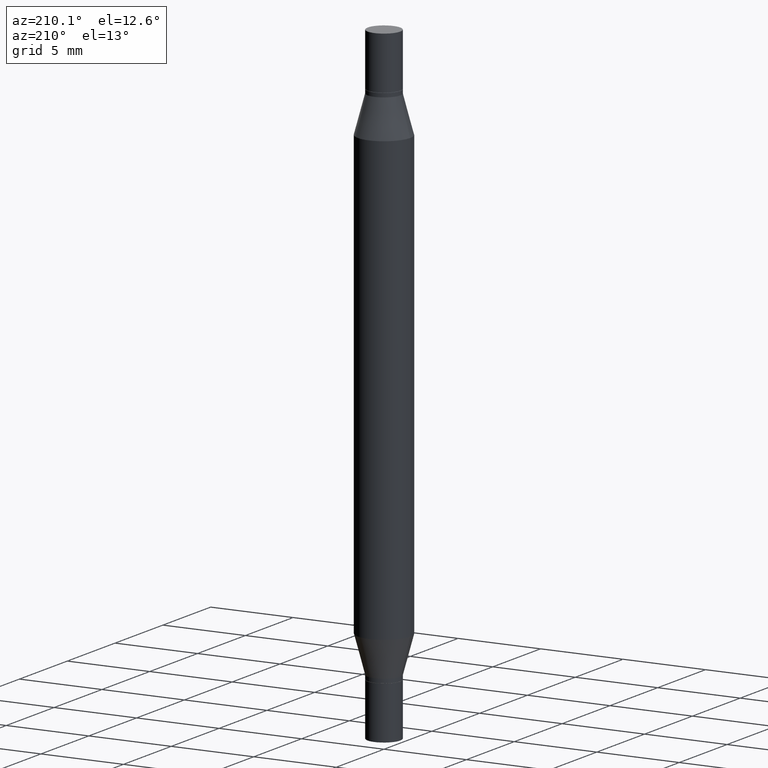
[diagram: clean part render]
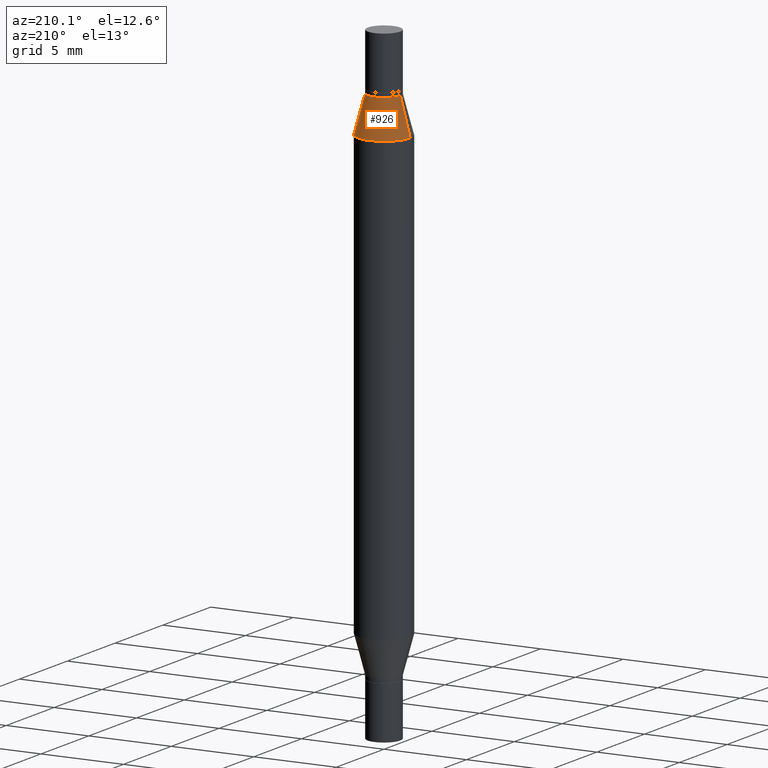
[diagram: same view with one face highlighted and labeled with its STEP entity id]
A machine part, auxiliary view. The second image highlights one B-rep face of the part: STEP entity #926.
In plain terms, the highlighted conical surface has half-angle 15 deg.
Its self-contained STEP definition (entity closure, byte-faithful):
#10 = FACE_OUTER_BOUND ( 'NONE', #309, .T. ) ;
#56 = VECTOR ( 'NONE', #739, 39.37007874015748143 ) ;
#67 = ORIENTED_EDGE ( 'NONE', *, *, #930, .F. ) ;
#80 = LINE ( 'NONE', #910, #876 ) ;
#124 = CIRCLE ( 'NONE', #293, 0.03904999999999992505 ) ;
#148 = EDGE_CURVE ( 'NONE', #767, #284, #496, .T. ) ;
#183 = CARTESIAN_POINT ( 'NONE',  ( 3.124045826058680346E-29, -7.767417506063242664E-16, -0.2225165914374896692 ) ) ;
#232 = DIRECTION ( 'NONE',  ( 0.2588190451025215721, -5.180148453816008779E-15, -0.9659258262890679791 ) ) ;
#236 = CARTESIAN_POINT ( 'NONE',  ( -0.03904999999999992505, -1.866623497172225345E-16, -0.1349999999999995093 ) ) ;
#270 = CARTESIAN_POINT ( 'NONE',  ( -0.03904999999999992505, -2.032484239182884731E-16, -0.1349999999999995093 ) ) ;
#284 = VERTEX_POINT ( 'NONE', #497 ) ;
#293 = AXIS2_PLACEMENT_3D ( 'NONE', #756, #607, #912 ) ;
#308 = DIRECTION ( 'NONE',  ( -2.445468806185136597E-29, -3.491805094961124077E-15, -1.000000000000000000 ) ) ;
#309 = EDGE_LOOP ( 'NONE', ( #425, #67, #380, #980 ) ) ;
#380 = ORIENTED_EDGE ( 'NONE', *, *, #674, .T. ) ;
#409 = CARTESIAN_POINT ( 'NONE',  ( 0.06250000000000000000, -1.213176917961717218E-15, -0.2225165914374896692 ) ) ;
#425 = ORIENTED_EDGE ( 'NONE', *, *, #469, .F. ) ;
#464 = CARTESIAN_POINT ( 'NONE',  ( 0.03904999999999992505, -7.438355632949145092E-16, -0.1349999999999995093 ) ) ;
#469 = EDGE_CURVE ( 'NONE', #645, #284, #965, .T. ) ;
#493 = DIRECTION ( 'NONE',  ( 1.000000000000000000, -6.982962677686266711E-15, 0.000000000000000000 ) ) ;
#496 = CIRCLE ( 'NONE', #796, 0.06250000000000000000 ) ;
#497 = CARTESIAN_POINT ( 'NONE',  ( -0.06250000000000000000, -3.479606257456047271E-16, -0.2225165914374896692 ) ) ;
#546 = DIRECTION ( 'NONE',  ( 2.445468806185136597E-29, 3.491805094961124077E-15, 1.000000000000000000 ) ) ;
#607 = DIRECTION ( 'NONE',  ( 2.445468806185136597E-29, 3.491805094961124077E-15, 1.000000000000000000 ) ) ;
#622 = CARTESIAN_POINT ( 'NONE',  ( 3.338064920442711836E-29, -4.711508707312662841E-16, -0.1349999999999995093 ) ) ;
#645 = VERTEX_POINT ( 'NONE', #236 ) ;
#674 = EDGE_CURVE ( 'NONE', #885, #767, #80, .T. ) ;
#688 = DIRECTION ( 'NONE',  ( 1.000000000000000000, -6.982962677686267499E-15, 0.000000000000000000 ) ) ;
#721 = CONICAL_SURFACE ( 'NONE', #805, 0.03904999999999992505, 0.2617993877991502960 ) ;
#739 = DIRECTION ( 'NONE',  ( -0.2588190451025215721, -1.597197180879712551E-15, -0.9659258262890679791 ) ) ;
#756 = CARTESIAN_POINT ( 'NONE',  ( 3.338064920442711836E-29, -4.711508707312662841E-16, -0.1349999999999995093 ) ) ;
#767 = VERTEX_POINT ( 'NONE', #409 ) ;
#796 = AXIS2_PLACEMENT_3D ( 'NONE', #183, #546, #493 ) ;
#805 = AXIS2_PLACEMENT_3D ( 'NONE', #622, #308, #688 ) ;
#876 = VECTOR ( 'NONE', #232, 39.37007874015748143 ) ;
#885 = VERTEX_POINT ( 'NONE', #464 ) ;
#910 = CARTESIAN_POINT ( 'NONE',  ( 0.03904999999999992505, -7.438355632949145092E-16, -0.1349999999999995093 ) ) ;
#912 = DIRECTION ( 'NONE',  ( 1.000000000000000000, -6.982962677686267499E-15, 0.000000000000000000 ) ) ;
#926 = ADVANCED_FACE ( 'NONE', ( #10 ), #721, .T. ) ;
#930 = EDGE_CURVE ( 'NONE', #885, #645, #124, .T. ) ;
#965 = LINE ( 'NONE', #270, #56 ) ;
#980 = ORIENTED_EDGE ( 'NONE', *, *, #148, .T. ) ;